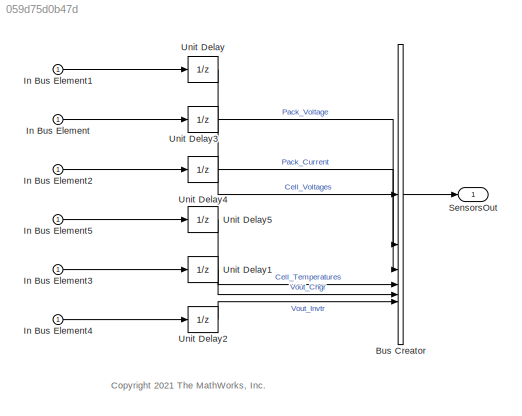
MODEL slx_059d75d0b47d
KIND model
CONFIG AbsTol = auto
CONFIG EnableMultiTasking = off
CONFIG FixedStep = auto
CONFIG MaxStep = auto
CONFIG MinStep = auto
CONFIG PreLoadFcn = clearEnums;\n% load('BattCrntDrvCycle');
CONFIG RelTol = 1e-3
CONFIG SampleTimeConstraint = Unconstrained
CONFIG SolverName = FixedStepDiscrete
CONFIG StartTime = 0.0
CONFIG StopTime = 10000
WORKSPACE source: mxarray member
WORKSPACE Active_Scenario_Index = 1
WORKSPACE BattTempInit = 25
WORKSPACE Battery: object (value not decoded)
WORKSPACE CellType = 1
WORKSPACE Np_Module = 31
WORKSPACE Ns_Module = 24
WORKSPACE NumModules = 4
WORKSPACE OverCellVoltageLimit = 4.19999980927
WORKSPACE TestCase = 1
WORKSPACE UnderCellVoltageLimit = 2.5
WORKSPACE ts = 0.1
BLOCK [BusCreator] Bus Creator
  DisplayOption = bar
  InheritFromInputs = off
  Inputs = 6
  NonVirtualBus = on
  OutDataTypeStr = Bus: Sensors
BLOCK [Inport] In Bus Element
BLOCK [Inport] In Bus Element1
BLOCK [Inport] In Bus Element2
BLOCK [Inport] In Bus Element3
BLOCK [Inport] In Bus Element4
BLOCK [Inport] In Bus Element5
BLOCK [Outport] SensorsOut
  BusOutputAsStruct = on
  OutDataTypeStr = Bus: Sensors
  SampleTime = ts
BLOCK [UnitDelay] Unit Delay
  HasFrameUpgradeWarning = on
  InitialCondition = 3.6*ones(1, Ns_Module*NumModules)
  SampleTime = -1
BLOCK [UnitDelay] Unit Delay1
  HasFrameUpgradeWarning = on
  SampleTime = -1
BLOCK [UnitDelay] Unit Delay2
  HasFrameUpgradeWarning = on
  SampleTime = -1
BLOCK [UnitDelay] Unit Delay3
  HasFrameUpgradeWarning = on
  InitialCondition = 3.6*Ns_Module*NumModules
  SampleTime = -1
BLOCK [UnitDelay] Unit Delay4
  HasFrameUpgradeWarning = on
  SampleTime = -1
BLOCK [UnitDelay] Unit Delay5
  HasFrameUpgradeWarning = on
  InitialCondition = 293.15*ones(1,Ns_Module*NumModules)
  SampleTime = -1
ANNOTATION (root): <copyright redacted>
LINE Bus Creator:1 -> SensorsOut:1
LINE In Bus Element1:1 -> Unit Delay:1
LINE In Bus Element2:1 -> Unit Delay4:1
LINE In Bus Element3:1 -> Unit Delay1:1
LINE In Bus Element4:1 -> Unit Delay2:1
LINE In Bus Element5:1 -> Unit Delay5:1
LINE In Bus Element:1 -> Unit Delay3:1
LINE Unit Delay1:1 -> Bus Creator:5
LINE Unit Delay2:1 -> Bus Creator:6
LINE Unit Delay3:1 -> Bus Creator:2
LINE Unit Delay4:1 -> Bus Creator:3
LINE Unit Delay5:1 -> Bus Creator:4
LINE Unit Delay:1 -> Bus Creator:1
